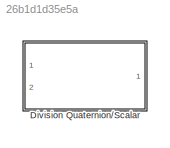
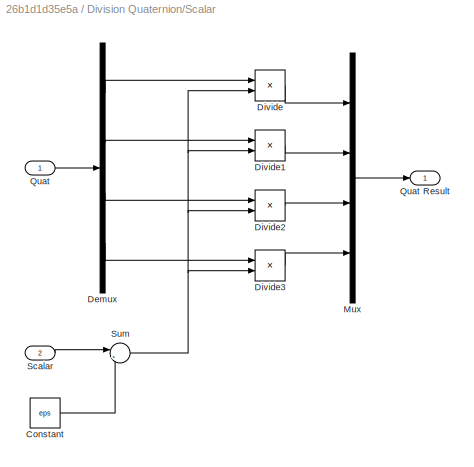
MODEL slx_26b1d1d35e5a
KIND library
BLOCK [SubSystem] Division Quaternion//Scalar
  Ports = [2, 1]
  RequestExecContextInheritance = off
BLOCK [Constant] Division Quaternion//Scalar/Constant
  Value = eps
BLOCK [Demux] Division Quaternion//Scalar/Demux
  DisplayOption = bar
  Ports = [1, 4]
BLOCK [Product] Division Quaternion//Scalar/Divide
  InputSameDT = off
  Inputs = */
  OutDataTypeStr = Inherit: Inherit via internal rule
  Ports = [2, 1]
  RndMeth = Floor
  SaturateOnIntegerOverflow = off
BLOCK [Product] Division Quaternion//Scalar/Divide1
  InputSameDT = off
  Inputs = */
  OutDataTypeStr = Inherit: Inherit via internal rule
  Ports = [2, 1]
  RndMeth = Floor
  SaturateOnIntegerOverflow = off
BLOCK [Product] Division Quaternion//Scalar/Divide2
  InputSameDT = off
  Inputs = */
  OutDataTypeStr = Inherit: Inherit via internal rule
  Ports = [2, 1]
  RndMeth = Floor
  SaturateOnIntegerOverflow = off
BLOCK [Product] Division Quaternion//Scalar/Divide3
  InputSameDT = off
  Inputs = */
  OutDataTypeStr = Inherit: Inherit via internal rule
  Ports = [2, 1]
  RndMeth = Floor
  SaturateOnIntegerOverflow = off
BLOCK [Mux] Division Quaternion//Scalar/Mux
  DisplayOption = bar
  Ports = [4, 1]
BLOCK [Inport] Division Quaternion//Scalar/Quat
  IconDisplay = Port number
BLOCK [Outport] Division Quaternion//Scalar/Quat Result
  IconDisplay = Port number
BLOCK [Inport] Division Quaternion//Scalar/Scalar
  IconDisplay = Port number
  Port = 2
BLOCK [Sum] Division Quaternion//Scalar/Sum
  IconShape = round
  InputSameDT = off
  Inputs = |++
  OutDataTypeStr = Inherit: Inherit via internal rule
  Ports = [2, 1]
  SaturateOnIntegerOverflow = off
LINE Division Quaternion//Scalar/Constant:1 -> Division Quaternion//Scalar/Sum:2
LINE Division Quaternion//Scalar/Demux:1 -> Division Quaternion//Scalar/Divide:1
LINE Division Quaternion//Scalar/Demux:2 -> Division Quaternion//Scalar/Divide1:1
LINE Division Quaternion//Scalar/Demux:3 -> Division Quaternion//Scalar/Divide2:1
LINE Division Quaternion//Scalar/Demux:4 -> Division Quaternion//Scalar/Divide3:1
LINE Division Quaternion//Scalar/Divide1:1 -> Division Quaternion//Scalar/Mux:2
LINE Division Quaternion//Scalar/Divide2:1 -> Division Quaternion//Scalar/Mux:3
LINE Division Quaternion//Scalar/Divide3:1 -> Division Quaternion//Scalar/Mux:4
LINE Division Quaternion//Scalar/Divide:1 -> Division Quaternion//Scalar/Mux:1
LINE Division Quaternion//Scalar/Mux:1 -> Division Quaternion//Scalar/Quat Result:1
LINE Division Quaternion//Scalar/Quat:1 -> Division Quaternion//Scalar/Demux:1
LINE Division Quaternion//Scalar/Scalar:1 -> Division Quaternion//Scalar/Sum:1
NET Division Quaternion//Scalar/Sum:1 -> Division Quaternion//Scalar/Divide1:2, Division Quaternion//Scalar/Divide2:2, Division Quaternion//Scalar/Divide3:2, Division Quaternion//Scalar/Divide:2
note: NET lines group one-source signal fan-out (src -> all destinations, sorted); 1:1 wires keep LINE
